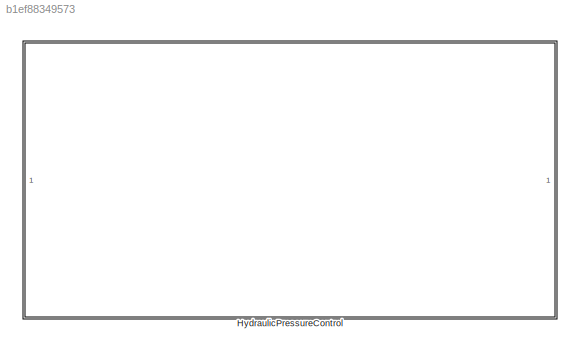
MODEL slx_b1ef88349573
KIND library
CONFIG AbsTol = auto
CONFIG EnableMultiTasking = off
CONFIG FixedStep = auto
CONFIG MaxStep = auto
CONFIG MinStep = auto
CONFIG RelTol = 1e-3
CONFIG SampleTimeConstraint = Unconstrained
CONFIG SolverName = VariableStepAuto
CONFIG StartTime = 0.0
CONFIG StopTime = 10.0
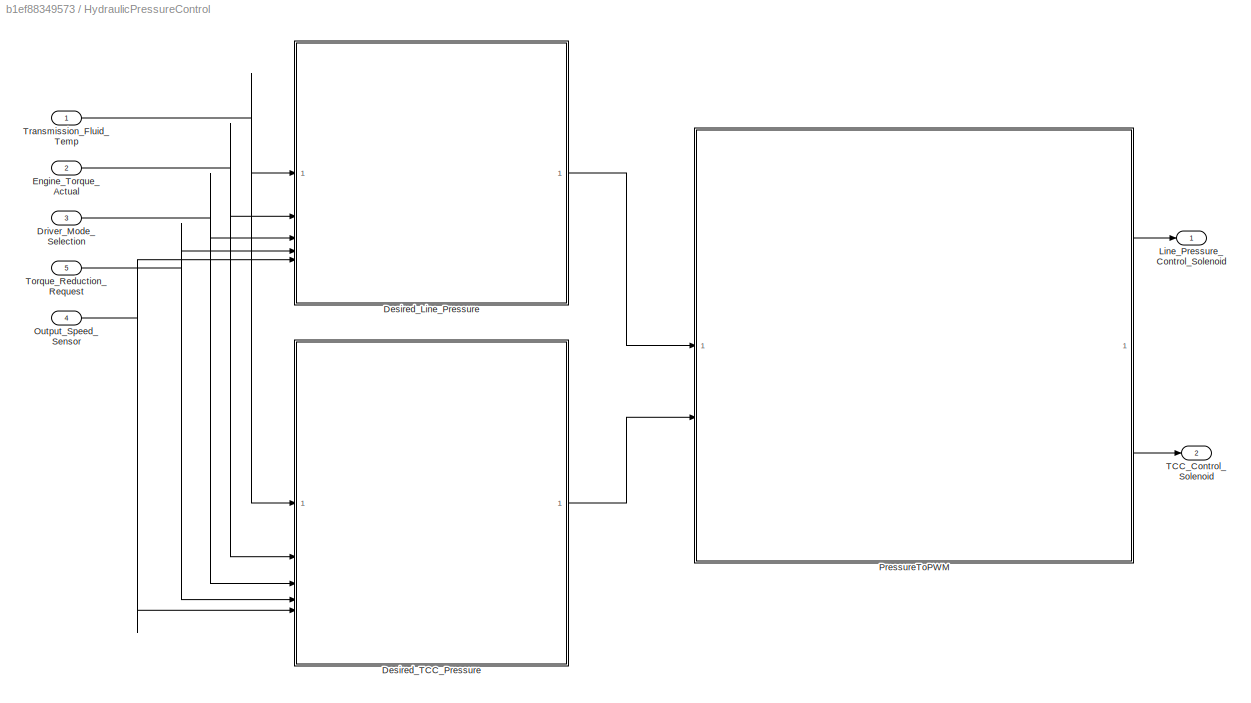
BLOCK [SubSystem] HydraulicPressureControl
  RTWFcnNameOpts = Use subsystem name
  RTWFileNameOpts = Use subsystem name
  RTWSystemCode = Reusable function
  TreatAsAtomicUnit = on
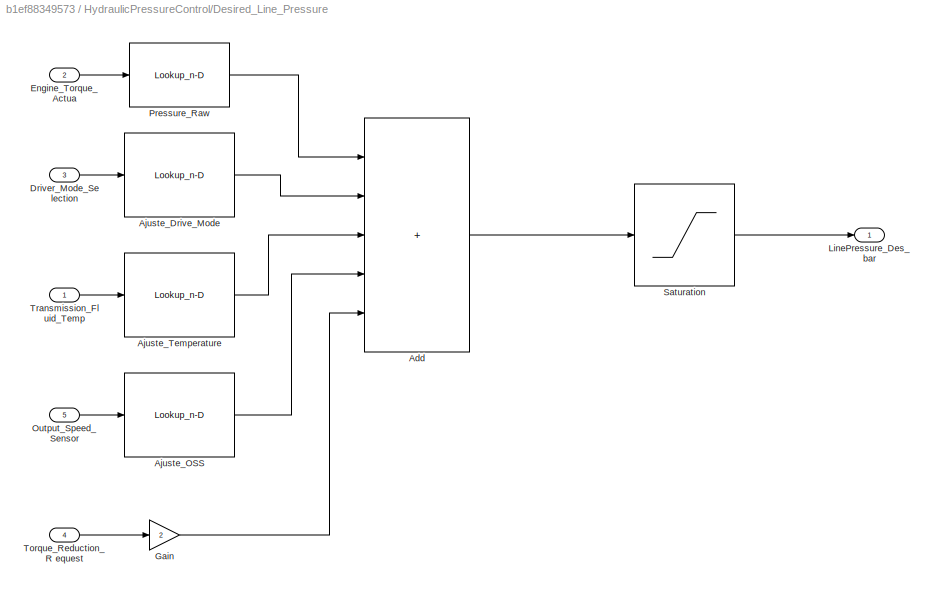
BLOCK [SubSystem] HydraulicPressureControl/Desired_Line_Pressure
BLOCK [Sum] HydraulicPressureControl/Desired_Line_Pressure/Add
  AccumDataTypeStr = double
  IconShape = rectangular
  Inputs = +++++
  OutDataTypeStr = double
BLOCK [Lookup_n-D] HydraulicPressureControl/Desired_Line_Pressure/Ajuste_Drive_Mode
  BreakpointsForDimension1 = [0 1 2]
  BreakpointsForDimension1DataTypeStr = double
  FractionDataTypeStr = double
  InputPortMap = u0
  IntermediateResultsDataTypeStr = double
  InternalRulePriority = Speed
  NumberOfTableDimensions = 1
  OutDataTypeStr = double
  RndMeth = Simplest
  Table = [ -2.0  0.0  2.0 ]
  TableDataTypeStr = double
BLOCK [Lookup_n-D] HydraulicPressureControl/Desired_Line_Pressure/Ajuste_OSS
  BreakpointsForDimension1 = [    0   300   800  1500  2500  3500  4500 ]
  BreakpointsForDimension1DataTypeStr = double
  FractionDataTypeStr = double
  InputPortMap = u0
  IntermediateResultsDataTypeStr = double
  InternalRulePriority = Speed
  NumberOfTableDimensions = 1
  OutDataTypeStr = double
  RndMeth = Simplest
  Table = [0.0  0.0  0.2  0.5  0.8  1.0  1.2 ]
  TableDataTypeStr = double
BLOCK [Lookup_n-D] HydraulicPressureControl/Desired_Line_Pressure/Ajuste_Temperature
  BreakpointsForDimension1 = [ -20    0   20   40   60   80  100  120 ]
  BreakpointsForDimension1DataTypeStr = double
  FractionDataTypeStr = double
  InputPortMap = u0
  IntermediateResultsDataTypeStr = double
  InternalRulePriority = Speed
  NumberOfTableDimensions = 1
  OutDataTypeStr = double
  RndMeth = Simplest
  Table = [  3.0  2.0 1.5  0.5  0.0  0.0 0.5  1.0 ]
  TableDataTypeStr = double
BLOCK [Inport] HydraulicPressureControl/Desired_Line_Pressure/Driver_Mode_Se lection 
  OutDataTypeStr = double
  Port = 3
  PortDimensions = 1
  SignalType = real
  VarSizeSig = No
BLOCK [Inport] HydraulicPressureControl/Desired_Line_Pressure/Engine_Torque_ Actua
  OutDataTypeStr = double
  Port = 2
  PortDimensions = 1
  SignalType = real
  VarSizeSig = No
BLOCK [Gain] HydraulicPressureControl/Desired_Line_Pressure/Gain
  Gain = 2
  OutDataTypeStr = double
BLOCK [Outport] HydraulicPressureControl/Desired_Line_Pressure/LinePressure_Des_bar
  OutDataTypeStr = double
  PortDimensions = 1
  SignalType = real
  VarSizeSig = No
BLOCK [Inport] HydraulicPressureControl/Desired_Line_Pressure/Output_Speed_ Sensor
  OutDataTypeStr = double
  Port = 5
  PortDimensions = 1
  SignalType = real
  VarSizeSig = No
BLOCK [Lookup_n-D] HydraulicPressureControl/Desired_Line_Pressure/Pressure_Raw
  BreakpointsForDimension1 = [ 0   50  100  150  200  250  300  350 ]
  BreakpointsForDimension1DataTypeStr = double
  FractionDataTypeStr = double
  InputPortMap = u0
  IntermediateResultsDataTypeStr = double
  InternalRulePriority = Speed
  NumberOfTableDimensions = 1
  OutDataTypeStr = double
  RndMeth = Simplest
  Table = [ 4.0 5.5  7.0  8.5 10.0 12.0 14.0 16.0 ]
  TableDataTypeStr = double
BLOCK [Saturate] HydraulicPressureControl/Desired_Line_Pressure/Saturation
  LowerLimit = 4
  OutDataTypeStr = double
  UpperLimit = 18
BLOCK [Inport] HydraulicPressureControl/Desired_Line_Pressure/Torque_Reduction_R equest
  OutDataTypeStr = double
  Port = 4
  PortDimensions = 1
  SignalType = real
  VarSizeSig = No
BLOCK [Inport] HydraulicPressureControl/Desired_Line_Pressure/Transmission_Fl uid_Temp
  OutDataTypeStr = double
  PortDimensions = 1
  SignalType = real
  VarSizeSig = No
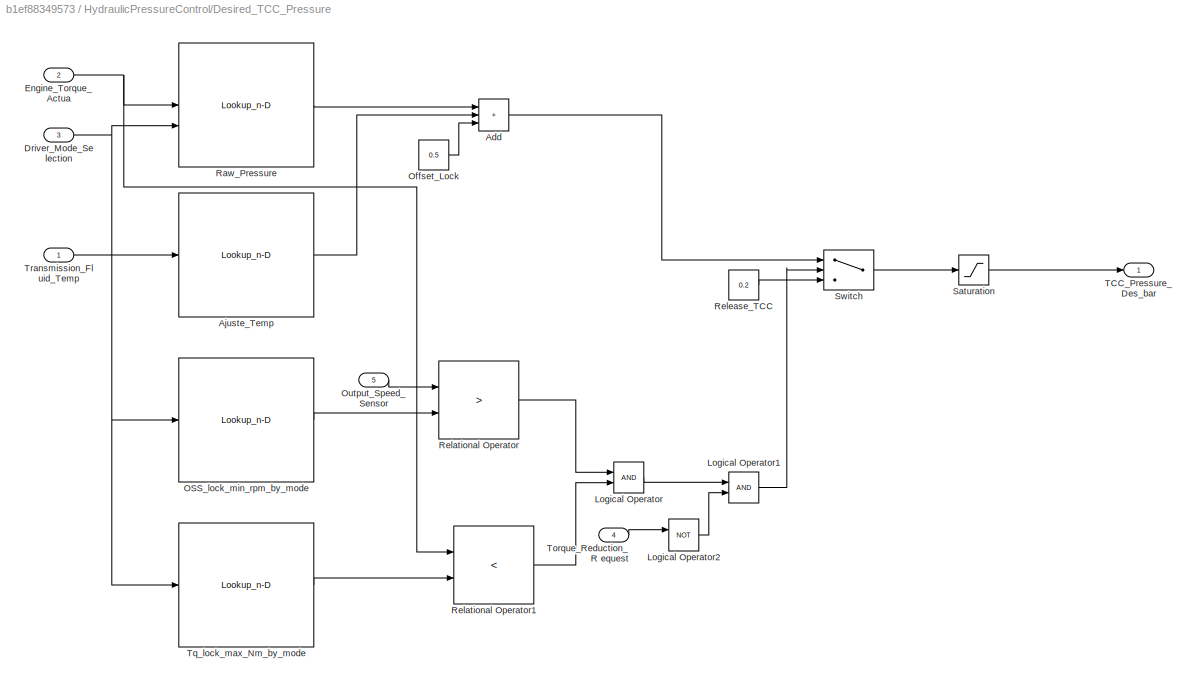
BLOCK [SubSystem] HydraulicPressureControl/Desired_TCC_Pressure
BLOCK [Sum] HydraulicPressureControl/Desired_TCC_Pressure/Add
  AccumDataTypeStr = double
  IconShape = rectangular
  Inputs = +++
  OutDataTypeStr = double
BLOCK [Lookup_n-D] HydraulicPressureControl/Desired_TCC_Pressure/Ajuste_Temp
  BreakpointsForDimension1 = [ -20    0   20   40   60   80  100  120 ]
  BreakpointsForDimension1DataTypeStr = double
  FractionDataTypeStr = double
  InputPortMap = u0
  IntermediateResultsDataTypeStr = double
  InternalRulePriority = Speed
  NumberOfTableDimensions = 1
  OutDataTypeStr = double
  RndMeth = Simplest
  Table = [ 0.2  0.2 0.1 0.0 0.0 0.0 0.1 0.2 ]
  TableDataTypeStr = double
BLOCK [Inport] HydraulicPressureControl/Desired_TCC_Pressure/Driver_Mode_Se lection 
  OutDataTypeStr = double
  Port = 3
  PortDimensions = 1
  SignalType = real
  VarSizeSig = No
BLOCK [Inport] HydraulicPressureControl/Desired_TCC_Pressure/Engine_Torque_ Actua
  OutDataTypeStr = double
  Port = 2
  PortDimensions = 1
  SignalType = real
  VarSizeSig = No
BLOCK [Logic] HydraulicPressureControl/Desired_TCC_Pressure/Logical Operator
  AllPortsSameDT = off
  OutDataTypeStr = boolean
BLOCK [Logic] HydraulicPressureControl/Desired_TCC_Pressure/Logical Operator1
  AllPortsSameDT = off
  OutDataTypeStr = boolean
BLOCK [Logic] HydraulicPressureControl/Desired_TCC_Pressure/Logical Operator2
  AllPortsSameDT = off
  Operator = NOT
  OutDataTypeStr = boolean
BLOCK [Lookup_n-D] HydraulicPressureControl/Desired_TCC_Pressure/OSS_lock_min_rpm_by_mode
  BreakpointsForDimension1 = [0 1 2]
  BreakpointsForDimension1DataTypeStr = double
  FractionDataTypeStr = double
  InputPortMap = u0
  IntermediateResultsDataTypeStr = double
  InternalRulePriority = Speed
  NumberOfTableDimensions = 1
  OutDataTypeStr = double
  RndMeth = Simplest
  Table = [ 1000  900  800 ]
  TableDataTypeStr = double
BLOCK [Constant] HydraulicPressureControl/Desired_TCC_Pressure/Offset_Lock
  OutDataTypeStr = double
  Value = 0.5
BLOCK [Inport] HydraulicPressureControl/Desired_TCC_Pressure/Output_Speed_ Sensor
  OutDataTypeStr = double
  Port = 5
  PortDimensions = 1
  SignalType = real
  VarSizeSig = No
BLOCK [Lookup_n-D] HydraulicPressureControl/Desired_TCC_Pressure/Raw_Pressure
  BreakpointsForDimension1 = [   0   50  100  150  200  250  300  350 ]
  BreakpointsForDimension1DataTypeStr = double
  BreakpointsForDimension2 = [0 1 2]
  BreakpointsForDimension2DataTypeStr = double
  FractionDataTypeStr = double
  InputPortMap = u0,u1
  IntermediateResultsDataTypeStr = double
  InternalRulePriority = Speed
  OutDataTypeStr = double
  RndMeth = Simplest
  Table = [\n  0.4   0.5   0.6 ;\n    0.6   0.7   0.8 ;\n    0.8   0.9   1.0 ;\n    1.0   1.1   1.2 ;\n    1.2   1.3   1.4 ;\n    1.4   1.5   1.6 ;\n    1.6   1.7   1.8 ; \n    1.8   1.9   2.0 ]
  TableDataTypeStr = double
BLOCK [RelationalOperator] HydraulicPressureControl/Desired_TCC_Pressure/Relational Operator
  InputSameDT = off
  Operator = >
  OutDataTypeStr = boolean
  RndMeth = Simplest
BLOCK [RelationalOperator] HydraulicPressureControl/Desired_TCC_Pressure/Relational Operator1
  InputSameDT = off
  Operator = <
  OutDataTypeStr = boolean
  RndMeth = Simplest
BLOCK [Constant] HydraulicPressureControl/Desired_TCC_Pressure/Release_TCC
  OutDataTypeStr = double
  Value = 0.2
BLOCK [Saturate] HydraulicPressureControl/Desired_TCC_Pressure/Saturation
  LowerLimit = 0
  OutDataTypeStr = double
  UpperLimit = 8
BLOCK [Switch] HydraulicPressureControl/Desired_TCC_Pressure/Switch
  Criteria = u2 > Threshold
  InputSameDT = off
  OutDataTypeStr = double
  SaturateOnIntegerOverflow = off
BLOCK [Outport] HydraulicPressureControl/Desired_TCC_Pressure/TCC_Pressure_Des_bar
  OutDataTypeStr = double
  PortDimensions = 1
  SignalType = real
  VarSizeSig = No
BLOCK [Inport] HydraulicPressureControl/Desired_TCC_Pressure/Torque_Reduction_R equest
  OutDataTypeStr = double
  Port = 4
  PortDimensions = 1
  SignalType = real
  VarSizeSig = No
BLOCK [Lookup_n-D] HydraulicPressureControl/Desired_TCC_Pressure/Tq_lock_max_Nm_by_mode
  BreakpointsForDimension1 = [0 1 2]
  BreakpointsForDimension1DataTypeStr = double
  FractionDataTypeStr = double
  InputPortMap = u0
  IntermediateResultsDataTypeStr = double
  InternalRulePriority = Speed
  NumberOfTableDimensions = 1
  OutDataTypeStr = double
  RndMeth = Simplest
  Table = [ 180  220  260 ]
  TableDataTypeStr = double
BLOCK [Inport] HydraulicPressureControl/Desired_TCC_Pressure/Transmission_Fl uid_Temp
  OutDataTypeStr = double
  PortDimensions = 1
  SignalType = real
  VarSizeSig = No
BLOCK [Inport] HydraulicPressureControl/Driver_Mode_Selection 
  OutDataTypeStr = double
  Port = 3
  PortDimensions = 1
  SignalType = real
  VarSizeSig = No
BLOCK [Inport] HydraulicPressureControl/Engine_Torque_Actual
  OutDataTypeStr = double
  Port = 2
  PortDimensions = 1
  SignalType = real
  VarSizeSig = No
BLOCK [Outport] HydraulicPressureControl/Line_Pressure_Control_Solenoid
  OutDataTypeStr = double
  PortDimensions = 1
  SignalType = real
  VarSizeSig = No
BLOCK [Inport] HydraulicPressureControl/Output_Speed_Sensor
  OutDataTypeStr = double
  Port = 4
  PortDimensions = 1
  SignalType = real
  VarSizeSig = No
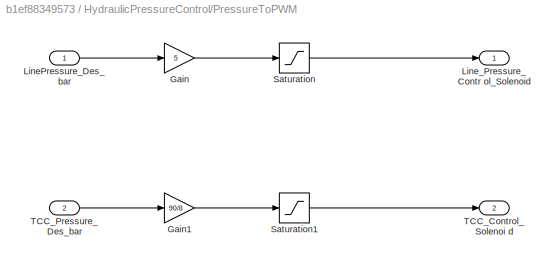
BLOCK [SubSystem] HydraulicPressureControl/PressureToPWM
BLOCK [Gain] HydraulicPressureControl/PressureToPWM/Gain
  Gain = 5
  OutDataTypeStr = double
BLOCK [Gain] HydraulicPressureControl/PressureToPWM/Gain1
  Gain = 90/8
  OutDataTypeStr = double
BLOCK [Inport] HydraulicPressureControl/PressureToPWM/LinePressure_Des_bar
  OutDataTypeStr = double
  PortDimensions = 1
  SignalType = real
  VarSizeSig = No
BLOCK [Outport] HydraulicPressureControl/PressureToPWM/Line_Pressure_Contr ol_Solenoid
  OutDataTypeStr = double
  PortDimensions = 1
  SignalType = real
  VarSizeSig = No
BLOCK [Saturate] HydraulicPressureControl/PressureToPWM/Saturation
  LowerLimit = 0
  OutDataTypeStr = double
  UpperLimit = 100
BLOCK [Saturate] HydraulicPressureControl/PressureToPWM/Saturation1
  LowerLimit = 0
  OutDataTypeStr = double
  UpperLimit = 100
BLOCK [Outport] HydraulicPressureControl/PressureToPWM/TCC_Control_Solenoi d
  OutDataTypeStr = double
  Port = 2
  PortDimensions = 1
  SignalType = real
  VarSizeSig = No
BLOCK [Inport] HydraulicPressureControl/PressureToPWM/TCC_Pressure_Des_bar
  OutDataTypeStr = double
  Port = 2
  PortDimensions = 1
  SignalType = real
  VarSizeSig = No
BLOCK [Outport] HydraulicPressureControl/TCC_Control_Solenoid
  OutDataTypeStr = double
  Port = 2
  PortDimensions = 1
  SignalType = real
  VarSizeSig = No
BLOCK [Inport] HydraulicPressureControl/Torque_Reduction_Request
  OutDataTypeStr = double
  Port = 5
  PortDimensions = 1
  SignalType = real
  VarSizeSig = No
BLOCK [Inport] HydraulicPressureControl/Transmission_Fluid_Temp
  OutDataTypeStr = double
  PortDimensions = 1
  SignalType = real
  VarSizeSig = No
LINE HydraulicPressureControl/Desired_Line_Pressure/Add:1 -> HydraulicPressureControl/Desired_Line_Pressure/Saturation:1
LINE HydraulicPressureControl/Desired_Line_Pressure/Ajuste_Drive_Mode:1 -> HydraulicPressureControl/Desired_Line_Pressure/Add:2
LINE HydraulicPressureControl/Desired_Line_Pressure/Ajuste_OSS:1 -> HydraulicPressureControl/Desired_Line_Pressure/Add:4
LINE HydraulicPressureControl/Desired_Line_Pressure/Ajuste_Temperature:1 -> HydraulicPressureControl/Desired_Line_Pressure/Add:3
LINE HydraulicPressureControl/Desired_Line_Pressure/Driver_Mode_Se lection :1 -> HydraulicPressureControl/Desired_Line_Pressure/Ajuste_Drive_Mode:1
LINE HydraulicPressureControl/Desired_Line_Pressure/Engine_Torque_ Actua:1 -> HydraulicPressureControl/Desired_Line_Pressure/Pressure_Raw:1
LINE HydraulicPressureControl/Desired_Line_Pressure/Gain:1 -> HydraulicPressureControl/Desired_Line_Pressure/Add:5
LINE HydraulicPressureControl/Desired_Line_Pressure/Output_Speed_ Sensor:1 -> HydraulicPressureControl/Desired_Line_Pressure/Ajuste_OSS:1
LINE HydraulicPressureControl/Desired_Line_Pressure/Pressure_Raw:1 -> HydraulicPressureControl/Desired_Line_Pressure/Add:1
LINE HydraulicPressureControl/Desired_Line_Pressure/Saturation:1 -> HydraulicPressureControl/Desired_Line_Pressure/LinePressure_Des_bar:1
LINE HydraulicPressureControl/Desired_Line_Pressure/Torque_Reduction_R equest:1 -> HydraulicPressureControl/Desired_Line_Pressure/Gain:1
LINE HydraulicPressureControl/Desired_Line_Pressure/Transmission_Fl uid_Temp:1 -> HydraulicPressureControl/Desired_Line_Pressure/Ajuste_Temperature:1
LINE HydraulicPressureControl/Desired_Line_Pressure:1 -> HydraulicPressureControl/PressureToPWM:1
LINE HydraulicPressureControl/Desired_TCC_Pressure/Add:1 -> HydraulicPressureControl/Desired_TCC_Pressure/Switch:1
LINE HydraulicPressureControl/Desired_TCC_Pressure/Ajuste_Temp:1 -> HydraulicPressureControl/Desired_TCC_Pressure/Add:2
NET HydraulicPressureControl/Desired_TCC_Pressure/Driver_Mode_Se lection :1 -> HydraulicPressureControl/Desired_TCC_Pressure/OSS_lock_min_rpm_by_mode:1, HydraulicPressureControl/Desired_TCC_Pressure/Raw_Pressure:2, HydraulicPressureControl/Desired_TCC_Pressure/Tq_lock_max_Nm_by_mode:1
NET HydraulicPressureControl/Desired_TCC_Pressure/Engine_Torque_ Actua:1 -> HydraulicPressureControl/Desired_TCC_Pressure/Raw_Pressure:1, HydraulicPressureControl/Desired_TCC_Pressure/Relational Operator1:1
LINE HydraulicPressureControl/Desired_TCC_Pressure/Logical Operator1:1 -> HydraulicPressureControl/Desired_TCC_Pressure/Switch:2
LINE HydraulicPressureControl/Desired_TCC_Pressure/Logical Operator2:1 -> HydraulicPressureControl/Desired_TCC_Pressure/Logical Operator1:2
LINE HydraulicPressureControl/Desired_TCC_Pressure/Logical Operator:1 -> HydraulicPressureControl/Desired_TCC_Pressure/Logical Operator1:1
LINE HydraulicPressureControl/Desired_TCC_Pressure/OSS_lock_min_rpm_by_mode:1 -> HydraulicPressureControl/Desired_TCC_Pressure/Relational Operator:2
LINE HydraulicPressureControl/Desired_TCC_Pressure/Offset_Lock:1 -> HydraulicPressureControl/Desired_TCC_Pressure/Add:3
LINE HydraulicPressureControl/Desired_TCC_Pressure/Output_Speed_ Sensor:1 -> HydraulicPressureControl/Desired_TCC_Pressure/Relational Operator:1
LINE HydraulicPressureControl/Desired_TCC_Pressure/Raw_Pressure:1 -> HydraulicPressureControl/Desired_TCC_Pressure/Add:1
LINE HydraulicPressureControl/Desired_TCC_Pressure/Relational Operator1:1 -> HydraulicPressureControl/Desired_TCC_Pressure/Logical Operator:2
LINE HydraulicPressureControl/Desired_TCC_Pressure/Relational Operator:1 -> HydraulicPressureControl/Desired_TCC_Pressure/Logical Operator:1
LINE HydraulicPressureControl/Desired_TCC_Pressure/Release_TCC:1 -> HydraulicPressureControl/Desired_TCC_Pressure/Switch:3
LINE HydraulicPressureControl/Desired_TCC_Pressure/Saturation:1 -> HydraulicPressureControl/Desired_TCC_Pressure/TCC_Pressure_Des_bar:1
LINE HydraulicPressureControl/Desired_TCC_Pressure/Switch:1 -> HydraulicPressureControl/Desired_TCC_Pressure/Saturation:1
LINE HydraulicPressureControl/Desired_TCC_Pressure/Torque_Reduction_R equest:1 -> HydraulicPressureControl/Desired_TCC_Pressure/Logical Operator2:1
LINE HydraulicPressureControl/Desired_TCC_Pressure/Tq_lock_max_Nm_by_mode:1 -> HydraulicPressureControl/Desired_TCC_Pressure/Relational Operator1:2
LINE HydraulicPressureControl/Desired_TCC_Pressure/Transmission_Fl uid_Temp:1 -> HydraulicPressureControl/Desired_TCC_Pressure/Ajuste_Temp:1
LINE HydraulicPressureControl/Desired_TCC_Pressure:1 -> HydraulicPressureControl/PressureToPWM:2
NET HydraulicPressureControl/Driver_Mode_Selection :1 -> HydraulicPressureControl/Desired_Line_Pressure:3, HydraulicPressureControl/Desired_TCC_Pressure:3
NET HydraulicPressureControl/Engine_Torque_Actual:1 -> HydraulicPressureControl/Desired_Line_Pressure:2, HydraulicPressureControl/Desired_TCC_Pressure:2
NET HydraulicPressureControl/Output_Speed_Sensor:1 -> HydraulicPressureControl/Desired_Line_Pressure:5, HydraulicPressureControl/Desired_TCC_Pressure:5
LINE HydraulicPressureControl/PressureToPWM/Gain1:1 -> HydraulicPressureControl/PressureToPWM/Saturation1:1
LINE HydraulicPressureControl/PressureToPWM/Gain:1 -> HydraulicPressureControl/PressureToPWM/Saturation:1
LINE HydraulicPressureControl/PressureToPWM/LinePressure_Des_bar:1 -> HydraulicPressureControl/PressureToPWM/Gain:1
LINE HydraulicPressureControl/PressureToPWM/Saturation1:1 -> HydraulicPressureControl/PressureToPWM/TCC_Control_Solenoi d:1
LINE HydraulicPressureControl/PressureToPWM/Saturation:1 -> HydraulicPressureControl/PressureToPWM/Line_Pressure_Contr ol_Solenoid:1
LINE HydraulicPressureControl/PressureToPWM/TCC_Pressure_Des_bar:1 -> HydraulicPressureControl/PressureToPWM/Gain1:1
LINE HydraulicPressureControl/PressureToPWM:1 -> HydraulicPressureControl/Line_Pressure_Control_Solenoid:1
LINE HydraulicPressureControl/PressureToPWM:2 -> HydraulicPressureControl/TCC_Control_Solenoid:1
NET HydraulicPressureControl/Torque_Reduction_Request:1 -> HydraulicPressureControl/Desired_Line_Pressure:4, HydraulicPressureControl/Desired_TCC_Pressure:4
NET HydraulicPressureControl/Transmission_Fluid_Temp:1 -> HydraulicPressureControl/Desired_Line_Pressure:1, HydraulicPressureControl/Desired_TCC_Pressure:1
note: NET lines group one-source signal fan-out (src -> all destinations, sorted); 1:1 wires keep LINE
